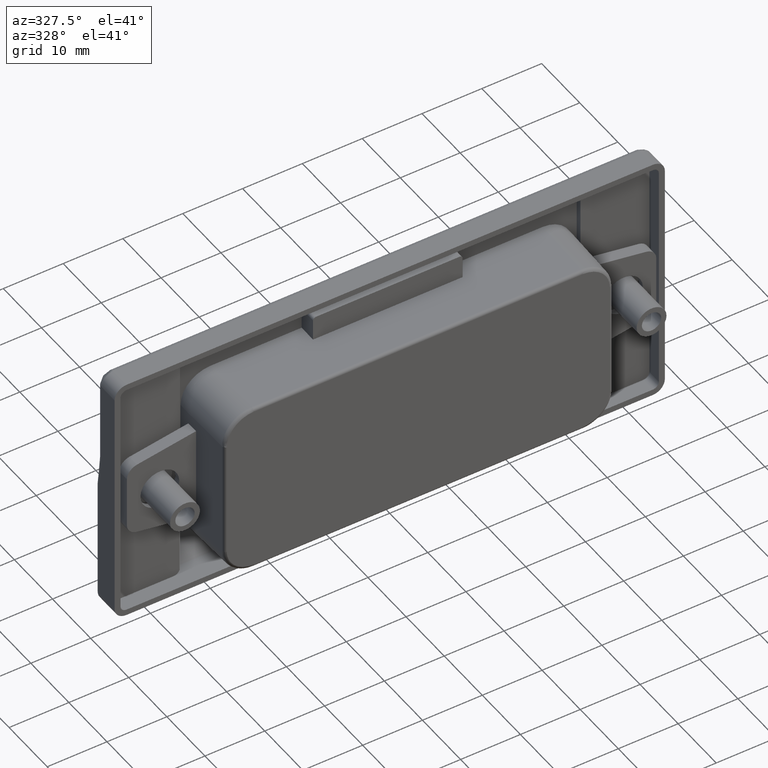
[diagram: clean part render]
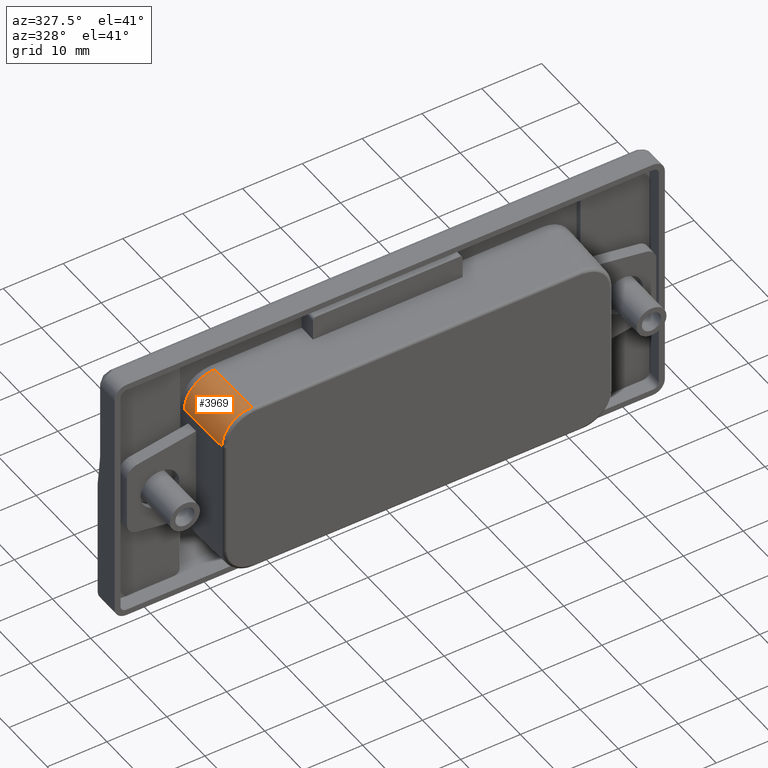
[diagram: same view with one face highlighted and labeled with its STEP entity id]
A machine part, auxiliary view. The second image highlights one B-rep face of the part: STEP entity #3969.
In plain terms, the highlighted face is a freeform B-spline surface patch.
Its self-contained STEP definition (entity closure, byte-faithful):
#19=(
BOUNDED_SURFACE()
B_SPLINE_SURFACE(1,2,((#8569,#8570,#8571),(#8572,#8573,#8574)),
 .UNSPECIFIED.,.F.,.F.,.F.)
B_SPLINE_SURFACE_WITH_KNOTS((2,2),(3,3),(0.113535651462403,2.01847812482101),
(-2.11121582706557,-0.540419500270673),.UNSPECIFIED.)
GEOMETRIC_REPRESENTATION_ITEM()
RATIONAL_B_SPLINE_SURFACE(((1.,0.707106781186547,1.),(1.,0.707106781186547,
1.)))
REPRESENTATION_ITEM('')
SURFACE()
);
#246=LINE('',#8296,#527);
#277=LINE('',#8565,#558);
#527=VECTOR('',#5210,9.48153130166259);
#558=VECTOR('',#5291,9.46654023745528);
#987=FACE_OUTER_BOUND('',#1247,.T.);
#1247=EDGE_LOOP('',(#3445,#3446,#3447,#3448,#3449,#3450));
#1573=B_SPLINE_CURVE_WITH_KNOTS('',3,(#8549,#8550,#8551,#8552,#8553,#8554),
 .UNSPECIFIED.,.F.,.F.,(4,1,1,4),(-0.706844066348001,-0.504888618820001,
-0.302933171292,0.),.UNSPECIFIED.);
#1575=B_SPLINE_CURVE_WITH_KNOTS('',3,(#8576,#8577,#8578,#8579),
 .UNSPECIFIED.,.F.,.F.,(4,4),(0.,7.50186061699826E-5),.UNSPECIFIED.);
#1576=B_SPLINE_CURVE_WITH_KNOTS('',3,(#8581,#8582,#8583,#8584,#8585,#8586),
 .UNSPECIFIED.,.F.,.F.,(4,1,1,4),(0.,0.0673423984867768,0.112237330811295,
0.157132263135813),.UNSPECIFIED.);
#1577=B_SPLINE_CURVE_WITH_KNOTS('',3,(#8587,#8588,#8589,#8590),
 .UNSPECIFIED.,.F.,.F.,(4,4),(0.,7.49760752270105E-5),.UNSPECIFIED.);
#1880=VERTEX_POINT('',#8293);
#1881=VERTEX_POINT('',#8295);
#1916=VERTEX_POINT('',#8513);
#1918=VERTEX_POINT('',#8564);
#1920=VERTEX_POINT('',#8575);
#1921=VERTEX_POINT('',#8580);
#2395=EDGE_CURVE('',#1881,#1880,#246,.T.);
#2446=EDGE_CURVE('',#1881,#1916,#1573,.T.);
#2449=EDGE_CURVE('',#1918,#1916,#277,.T.);
#2452=EDGE_CURVE('',#1920,#1880,#1575,.T.);
#2453=EDGE_CURVE('',#1921,#1920,#1576,.T.);
#2454=EDGE_CURVE('',#1918,#1921,#1577,.T.);
#3445=ORIENTED_EDGE('',*,*,#2446,.F.);
#3446=ORIENTED_EDGE('',*,*,#2395,.T.);
#3447=ORIENTED_EDGE('',*,*,#2452,.F.);
#3448=ORIENTED_EDGE('',*,*,#2453,.F.);
#3449=ORIENTED_EDGE('',*,*,#2454,.F.);
#3450=ORIENTED_EDGE('',*,*,#2449,.T.);
#3969=ADVANCED_FACE('',(#987),#19,.F.);
#5210=DIRECTION('',(-0.0249893817686418,0.999575270745728,0.0149936290611856));
#5291=DIRECTION('',(0.0249893817686418,-0.999575270745728,-0.0149936290611859));
#8293=CARTESIAN_POINT('',(-27.7492501265388,2.47000506155113,14.8995500759233));
#8295=CARTESIAN_POINT('',(-27.5123125210902,-7.00749915639236,14.7573875126541));
#8296=CARTESIAN_POINT('',(-27.5,-7.5,14.75));
#8513=CARTESIAN_POINT('',(-32.5121875976105,-7.0124960955801,9.7573125585663));
#8549=CARTESIAN_POINT('Ctrl Pts',(-27.5123125210902,-7.00749915639236,14.7573875126541));
#8550=CARTESIAN_POINT('Ctrl Pts',(-28.2602915042093,-7.0093685897205,14.7573594711542));
#8551=CARTESIAN_POINT('Ctrl Pts',(-29.7534406775631,-7.01258615677907,14.4150718044895));
#8552=CARTESIAN_POINT('Ctrl Pts',(-31.8562560229856,-7.01533069856036,12.7423227209744));
#8553=CARTESIAN_POINT('Ctrl Pts',(-32.5121455633815,-7.01417746473897,10.8792511305127));
#8554=CARTESIAN_POINT('Ctrl Pts',(-32.5121875976105,-7.0124960955801,9.7573125585663));
#8564=CARTESIAN_POINT('',(-32.7487505856325,2.45002342529959,9.89925035137949));
#8565=CARTESIAN_POINT('',(-32.75,2.5,9.9));
#8569=CARTESIAN_POINT('Ctrl Pts',(-32.5110635826878,-7.05745669248667,9.7566381496127));
#8570=CARTESIAN_POINT('Ctrl Pts',(-32.5091901750843,-7.13239299662815,14.7555141050506));
#8571=CARTESIAN_POINT('Ctrl Pts',(-27.5123125210902,-7.00749915639236,14.7573875126541));
#8572=CARTESIAN_POINT('Ctrl Pts',(-32.7490802562581,2.46321025032566,9.89944815375488));
#8573=CARTESIAN_POINT('Ctrl Pts',(-32.7472068486546,2.38827394618419,14.8983241091928));
#8574=CARTESIAN_POINT('Ctrl Pts',(-27.7503291946605,2.51316778641998,14.9001975167963));
#8575=CARTESIAN_POINT('',(-27.753003429622,2.46994876828234,14.899547821739));
#8576=CARTESIAN_POINT('Ctrl Pts',(-27.753003429622,2.46994876828233,14.899547821739));
#8577=CARTESIAN_POINT('Ctrl Pts',(-27.7517539958399,2.46996125592785,14.8995489475408));
#8578=CARTESIAN_POINT('Ctrl Pts',(-27.7505023778514,2.46998001245487,14.8995497001868));
#8579=CARTESIAN_POINT('Ctrl Pts',(-27.7492501265388,2.47000506155113,14.8995500759233));
#8580=CARTESIAN_POINT('',(-32.7487483410101,2.44998977294572,9.90299592901492));
#8581=CARTESIAN_POINT('Ctrl Pts',(-32.7487483410101,2.44998977294572,9.90299592901492));
#8582=CARTESIAN_POINT('Ctrl Pts',(-32.7477409650622,2.44328870041756,11.0238650082112));
#8583=CARTESIAN_POINT('Ctrl Pts',(-32.0916622879402,2.43871028011276,12.8835404179662));
#8584=CARTESIAN_POINT('Ctrl Pts',(-29.992574672713,2.44963336500328,14.5552899782388));
#8585=CARTESIAN_POINT('Ctrl Pts',(-28.5007278669973,2.46247552889632,14.8988740849441));
#8586=CARTESIAN_POINT('Ctrl Pts',(-27.753003429622,2.46994876828233,14.899547821739));
#8587=CARTESIAN_POINT('Ctrl Pts',(-32.7487505856325,2.45002342530018,9.89925035137951));
#8588=CARTESIAN_POINT('Ctrl Pts',(-32.7487502112344,2.4500084493776,9.90049929046554));
#8589=CARTESIAN_POINT('Ctrl Pts',(-32.7487494625783,2.44999723362659,9.90174800250369));
#8590=CARTESIAN_POINT('Ctrl Pts',(-32.7487483410101,2.44998977294612,9.90299592901492));